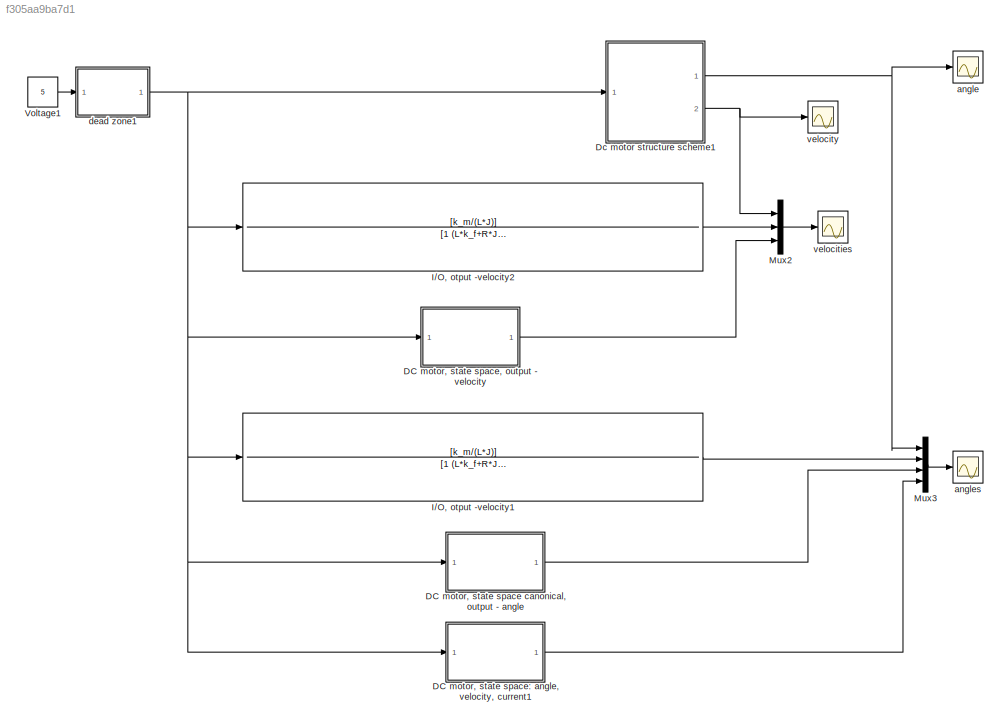
MODEL slx_f305aa9ba7d1
KIND model
CONFIG AbsTol = auto
CONFIG EnableMultiTasking = off
CONFIG FixedStep = 0.001
CONFIG MaxStep = auto
CONFIG MinStep = auto
CONFIG RelTol = 1e-3
CONFIG SampleTimeConstraint = Unconstrained
CONFIG Solver = FixedStepAuto
CONFIG SolverName = FixedStepAuto
CONFIG StartTime = 0.0
CONFIG StopTime = 20
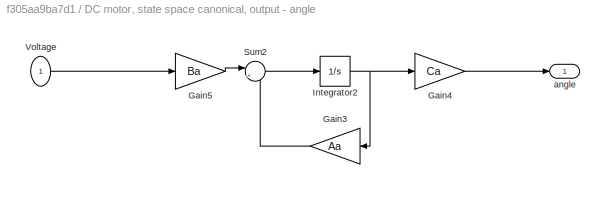
BLOCK [SubSystem] DC motor, state space canonical, output - angle
  Ports = [1, 1]
  RequestExecContextInheritance = off
  Variant = off
BLOCK [Gain] DC motor, state space canonical, output - angle/Gain3
  Gain = Aa
  Multiplication = Matrix(K*u) (u vector)
  OutDataTypeStr = Inherit: Inherit via internal rule
  ParamDataTypeStr = Inherit: Inherit via internal rule
  SaturateOnIntegerOverflow = off
BLOCK [Gain] DC motor, state space canonical, output - angle/Gain4
  Gain = Ca
  Multiplication = Matrix(K*u) (u vector)
  OutDataTypeStr = Inherit: Inherit via internal rule
  ParamDataTypeStr = Inherit: Inherit via internal rule
  SaturateOnIntegerOverflow = off
BLOCK [Gain] DC motor, state space canonical, output - angle/Gain5
  Gain = Ba
  Multiplication = Matrix(K*u) (u vector)
  OutDataTypeStr = Inherit: Inherit via internal rule
  ParamDataTypeStr = Inherit: Inherit via internal rule
  SaturateOnIntegerOverflow = off
BLOCK [Integrator] DC motor, state space canonical, output - angle/Integrator2
  Ports = [1, 1]
BLOCK [Sum] DC motor, state space canonical, output - angle/Sum2
  IconShape = round
  InputSameDT = off
  Inputs = |++
  OutDataTypeStr = Inherit: Inherit via internal rule
  Ports = [2, 1]
  SaturateOnIntegerOverflow = off
BLOCK [Inport] DC motor, state space canonical, output - angle/Voltage
  IconDisplay = Port number
BLOCK [Outport] DC motor, state space canonical, output - angle/angle
  IconDisplay = Port number
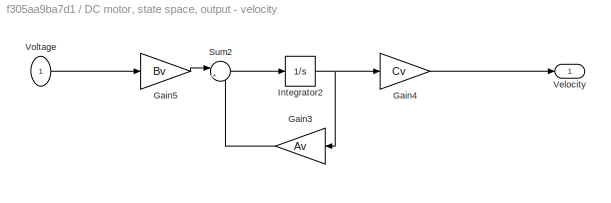
BLOCK [SubSystem] DC motor, state space, output - velocity
  Ports = [1, 1]
  RequestExecContextInheritance = off
  Variant = off
BLOCK [Gain] DC motor, state space, output - velocity/Gain3
  Gain = Av
  Multiplication = Matrix(K*u) (u vector)
  OutDataTypeStr = Inherit: Inherit via internal rule
  ParamDataTypeStr = Inherit: Inherit via internal rule
  SaturateOnIntegerOverflow = off
BLOCK [Gain] DC motor, state space, output - velocity/Gain4
  Gain = Cv
  Multiplication = Matrix(K*u) (u vector)
  OutDataTypeStr = Inherit: Inherit via internal rule
  ParamDataTypeStr = Inherit: Inherit via internal rule
  SaturateOnIntegerOverflow = off
BLOCK [Gain] DC motor, state space, output - velocity/Gain5
  Gain = Bv
  Multiplication = Matrix(K*u) (u vector)
  OutDataTypeStr = Inherit: Inherit via internal rule
  ParamDataTypeStr = Inherit: Inherit via internal rule
  SaturateOnIntegerOverflow = off
BLOCK [Integrator] DC motor, state space, output - velocity/Integrator2
  Ports = [1, 1]
BLOCK [Sum] DC motor, state space, output - velocity/Sum2
  IconShape = round
  InputSameDT = off
  Inputs = |++
  OutDataTypeStr = Inherit: Inherit via internal rule
  Ports = [2, 1]
  SaturateOnIntegerOverflow = off
BLOCK [Outport] DC motor, state space, output - velocity/Velocity
  IconDisplay = Port number
BLOCK [Inport] DC motor, state space, output - velocity/Voltage
  IconDisplay = Port number
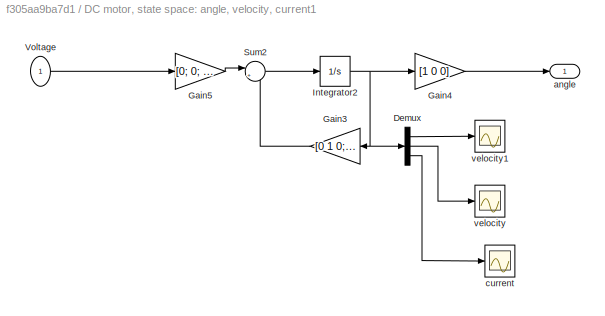
BLOCK [SubSystem] DC motor, state space: angle, velocity, current1
  Ports = [1, 1]
  RequestExecContextInheritance = off
  Variant = off
BLOCK [Demux] DC motor, state space: angle, velocity, current1/Demux
  DisplayOption = bar
  Outputs = 3
  Ports = [1, 3]
BLOCK [Gain] DC motor, state space: angle, velocity, current1/Gain3
  Gain = [0 1 0; 0 -k_f/J k_m/J; 0 -k_e/T -1/T]
  Multiplication = Matrix(K*u) (u vector)
  OutDataTypeStr = Inherit: Inherit via internal rule
  ParamDataTypeStr = Inherit: Inherit via internal rule
  SaturateOnIntegerOverflow = off
BLOCK [Gain] DC motor, state space: angle, velocity, current1/Gain4
  Gain = [1 0 0]
  Multiplication = Matrix(K*u) (u vector)
  OutDataTypeStr = Inherit: Inherit via internal rule
  ParamDataTypeStr = Inherit: Inherit via internal rule
  SaturateOnIntegerOverflow = off
BLOCK [Gain] DC motor, state space: angle, velocity, current1/Gain5
  Gain = [0; 0; K_D/T]
  Multiplication = Matrix(K*u) (u vector)
  OutDataTypeStr = Inherit: Inherit via internal rule
  ParamDataTypeStr = Inherit: Inherit via internal rule
  SaturateOnIntegerOverflow = off
BLOCK [Integrator] DC motor, state space: angle, velocity, current1/Integrator2
  Ports = [1, 1]
BLOCK [Sum] DC motor, state space: angle, velocity, current1/Sum2
  IconShape = round
  InputSameDT = off
  Inputs = |++
  OutDataTypeStr = Inherit: Inherit via internal rule
  Ports = [2, 1]
  SaturateOnIntegerOverflow = off
BLOCK [Inport] DC motor, state space: angle, velocity, current1/Voltage
  IconDisplay = Port number
BLOCK [Outport] DC motor, state space: angle, velocity, current1/angle
  IconDisplay = Port number
BLOCK [Scope] DC motor, state space: angle, velocity, current1/current
  NumInputPorts = 1
  Ports = [1]
  ScopeSpecificationString = Simulink.scopes.TimeScopeBlockCfg('CurrentConfiguration', extmgr.ConfigurationSet(extmgr.Configuration('Core','General UI',true),extmgr.Configuration('Core','Source UI',true),extmgr.Configuration('Sources','WiredSimulink',true,'DataLoggingVariableName','ScopeData3'),extmgr.Configuration('Visuals','Time Domain',true,'SerializedDisplays',{struct('MinYLimReal','-123.5','MaxYLimReal','1111.5','YLabelR...<+1380ch>
BLOCK [Scope] DC motor, state space: angle, velocity, current1/velocity
  NumInputPorts = 1
  Ports = [1]
  ScopeSpecificationString = Simulink.scopes.TimeScopeBlockCfg('CurrentConfiguration', extmgr.ConfigurationSet(extmgr.Configuration('Core','General UI',true),extmgr.Configuration('Core','Source UI',true),extmgr.Configuration('Sources','WiredSimulink',true,'DataLoggingVariableName','ScopeData1'),extmgr.Configuration('Visuals','Time Domain',true,'SerializedDisplays',{struct('MinYLimReal','-1.2501','MaxYLimReal','11.25091','YLab...<+1368ch>
BLOCK [Scope] DC motor, state space: angle, velocity, current1/velocity1
  NumInputPorts = 1
  Ports = [1]
  ScopeSpecificationString = Simulink.scopes.TimeScopeBlockCfg('CurrentConfiguration', extmgr.ConfigurationSet(extmgr.Configuration('Core','General UI',true),extmgr.Configuration('Core','Source UI',true),extmgr.Configuration('Sources','WiredSimulink',true,'DataLoggingVariableName','ScopeData2'),extmgr.Configuration('Visuals','Time Domain',true,'SerializedDisplays',{struct('MinYLimReal','-123.5','MaxYLimReal','1111.5','YLabelR...<+1380ch>
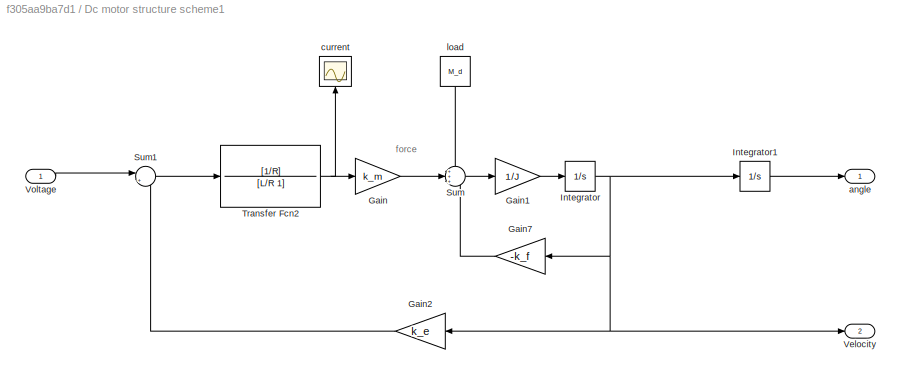
BLOCK [SubSystem] Dc motor structure scheme1
  Ports = [1, 2]
  RequestExecContextInheritance = off
  Variant = off
BLOCK [Gain] Dc motor structure scheme1/Gain
  Gain = k_m
  OutDataTypeStr = Inherit: Inherit via internal rule
  ParamDataTypeStr = Inherit: Inherit via internal rule
  SaturateOnIntegerOverflow = off
BLOCK [Gain] Dc motor structure scheme1/Gain1
  Gain = 1/J
  OutDataTypeStr = Inherit: Inherit via internal rule
  ParamDataTypeStr = Inherit: Inherit via internal rule
  SaturateOnIntegerOverflow = off
BLOCK [Gain] Dc motor structure scheme1/Gain2
  Gain = k_e
  OutDataTypeStr = Inherit: Inherit via internal rule
  ParamDataTypeStr = Inherit: Inherit via internal rule
  SaturateOnIntegerOverflow = off
BLOCK [Gain] Dc motor structure scheme1/Gain7
  Gain = -k_f
  OutDataTypeStr = Inherit: Inherit via internal rule
  ParamDataTypeStr = Inherit: Inherit via internal rule
  SaturateOnIntegerOverflow = off
BLOCK [Integrator] Dc motor structure scheme1/Integrator
  Ports = [1, 1]
BLOCK [Integrator] Dc motor structure scheme1/Integrator1
  Ports = [1, 1]
BLOCK [Sum] Dc motor structure scheme1/Sum
  IconShape = round
  InputSameDT = off
  Inputs = +++
  OutDataTypeStr = Inherit: Inherit via internal rule
  Ports = [3, 1]
  SaturateOnIntegerOverflow = off
BLOCK [Sum] Dc motor structure scheme1/Sum1
  IconShape = round
  InputSameDT = off
  Inputs = |+-
  OutDataTypeStr = Inherit: Inherit via internal rule
  Ports = [2, 1]
  SaturateOnIntegerOverflow = off
BLOCK [TransferFcn] Dc motor structure scheme1/Transfer Fcn2
  Denominator = [L/R 1]
  Numerator = [1/R]
BLOCK [Outport] Dc motor structure scheme1/Velocity
  IconDisplay = Port number
  Port = 2
BLOCK [Inport] Dc motor structure scheme1/Voltage
  IconDisplay = Port number
BLOCK [Outport] Dc motor structure scheme1/angle
  IconDisplay = Port number
BLOCK [Scope] Dc motor structure scheme1/current
  NumInputPorts = 1
  Ports = [1]
  ScopeSpecificationString = Simulink.scopes.TimeScopeBlockCfg('CurrentConfiguration', extmgr.ConfigurationSet(extmgr.Configuration('Core','General UI',true),extmgr.Configuration('Core','Source UI',true),extmgr.Configuration('Sources','WiredSimulink',true,'DataLoggingVariableName','ScopeData2'),extmgr.Configuration('Visuals','Time Domain',true,'SerializedDisplays',{struct('MinYLimReal','-0.50015','MaxYLimReal','4.50135','YLab...<+1372ch>
BLOCK [Constant] Dc motor structure scheme1/load
  Value = M_d
BLOCK [TransferFcn] I//O, otput -velocity1
  Denominator = [1 (L*k_f+R*J)/(L*J) (R*k_f+k_m*k_e)/(L*J) 0]
  Numerator = [k_m/(L*J)]
BLOCK [TransferFcn] I//O, otput -velocity2
  Denominator = [1 (L*k_f+R*J)/(L*J) (R*k_f+k_m*k_e)/(L*J)]
  Numerator = [k_m/(L*J)]
BLOCK [Mux] Mux2
  DisplayOption = bar
  Inputs = 3
  Ports = [3, 1]
BLOCK [Mux] Mux3
  DisplayOption = bar
  Ports = [4, 1]
BLOCK [Constant] Voltage1
  Value = 5
BLOCK [Scope] angle
  NumInputPorts = 1
  Ports = [1]
  ScopeSpecificationString = Simulink.scopes.TimeScopeBlockCfg('CurrentConfiguration', extmgr.ConfigurationSet(extmgr.Configuration('Core','General UI',true),extmgr.Configuration('Core','Source UI',true),extmgr.Configuration('Sources','WiredSimulink',true,'DataLoggingVariableName','ScopeData1'),extmgr.Configuration('Visuals','Time Domain',true,'SerializedDisplays',{struct('MinYLimReal','-23.5','MaxYLimReal','211.5','YLabelRea...<+1373ch>
BLOCK [Scope] angles
  NumInputPorts = 1
  Ports = [1]
  ScopeSpecificationString = Simulink.scopes.TimeScopeBlockCfg('CurrentConfiguration', extmgr.ConfigurationSet(extmgr.Configuration('Core','General UI',true),extmgr.Configuration('Core','Source UI',true),extmgr.Configuration('Sources','WiredSimulink',true,'DataLoggingVariableName','ScopeData4'),extmgr.Configuration('Visuals','Time Domain',true,'SerializedDisplays',{struct('MinYLimReal','-23.5','MaxYLimReal','211.5','YLabelRea...<+1524ch>
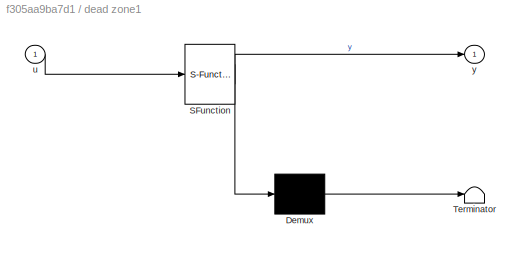
BLOCK [SubSystem] dead zone1
  ErrorFcn = Stateflow.Translate.translate
  PermitHierarchicalResolution = ExplicitOnly
  Ports = [1, 1]
  RequestExecContextInheritance = off
  SFBlockType = MATLAB Function
  TreatAsAtomicUnit = on
  Variant = off
BLOCK [Demux] dead zone1/ Demux 
  Outputs = 1
  Ports = [1, 1]
BLOCK [S-Function] dead zone1/ SFunction 
  EnableBusSupport = on
  FunctionName = sf_sfun
  PortCounts = [1 2]
  Ports = [1, 2]
  SFcnIsStateOwnerBlock = off
  SFunctionDeploymentMode = off
  Tag = Stateflow S-Function dc_motor_models 1
BLOCK [Terminator] dead zone1/ Terminator 
BLOCK [Inport] dead zone1/u
  IconDisplay = Port number
BLOCK [Outport] dead zone1/y
  IconDisplay = Port number
BLOCK [Scope] velocities
  NumInputPorts = 1
  Ports = [1]
  ScopeSpecificationString = Simulink.scopes.TimeScopeBlockCfg('CurrentConfiguration', extmgr.ConfigurationSet(extmgr.Configuration('Core','General UI',true),extmgr.Configuration('Core','Source UI',true),extmgr.Configuration('Sources','WiredSimulink',true,'DataLoggingVariableName','ScopeData3'),extmgr.Configuration('Visuals','Time Domain',true,'SerializedDisplays',{struct('MinYLimReal','-1.2501','MaxYLimReal','11.25091','YLab...<+1482ch>
BLOCK [Scope] velocity
  NumInputPorts = 1
  Ports = [1]
  ScopeSpecificationString = Simulink.scopes.TimeScopeBlockCfg('CurrentConfiguration', extmgr.ConfigurationSet(extmgr.Configuration('Core','General UI',true),extmgr.Configuration('Core','Source UI',true),extmgr.Configuration('Sources','WiredSimulink',true,'DataLoggingVariableName','ScopeData2'),extmgr.Configuration('Visuals','Time Domain',true,'SerializedDisplays',{struct('MinYLimReal','-1.2501','MaxYLimReal','11.25091','YLab...<+1389ch>
ANNOTATION Dc motor structure scheme1: force
LINE DC motor, state space canonical, output - angle/Gain3:1 -> DC motor, state space canonical, output - angle/Sum2:2
LINE DC motor, state space canonical, output - angle/Gain4:1 -> DC motor, state space canonical, output - angle/angle:1
LINE DC motor, state space canonical, output - angle/Gain5:1 -> DC motor, state space canonical, output - angle/Sum2:1
NET DC motor, state space canonical, output - angle/Integrator2:1 -> DC motor, state space canonical, output - angle/Gain3:1, DC motor, state space canonical, output - angle/Gain4:1
LINE DC motor, state space canonical, output - angle/Sum2:1 -> DC motor, state space canonical, output - angle/Integrator2:1
LINE DC motor, state space canonical, output - angle/Voltage:1 -> DC motor, state space canonical, output - angle/Gain5:1
LINE DC motor, state space canonical, output - angle:1 -> Mux3:3
LINE DC motor, state space, output - velocity/Gain3:1 -> DC motor, state space, output - velocity/Sum2:2
LINE DC motor, state space, output - velocity/Gain4:1 -> DC motor, state space, output - velocity/Velocity:1
LINE DC motor, state space, output - velocity/Gain5:1 -> DC motor, state space, output - velocity/Sum2:1
NET DC motor, state space, output - velocity/Integrator2:1 -> DC motor, state space, output - velocity/Gain3:1, DC motor, state space, output - velocity/Gain4:1
LINE DC motor, state space, output - velocity/Sum2:1 -> DC motor, state space, output - velocity/Integrator2:1
LINE DC motor, state space, output - velocity/Voltage:1 -> DC motor, state space, output - velocity/Gain5:1
LINE DC motor, state space, output - velocity:1 -> Mux2:3
LINE DC motor, state space: angle, velocity, current1/Demux:1 -> DC motor, state space: angle, velocity, current1/velocity1:1
LINE DC motor, state space: angle, velocity, current1/Demux:2 -> DC motor, state space: angle, velocity, current1/velocity:1
LINE DC motor, state space: angle, velocity, current1/Demux:3 -> DC motor, state space: angle, velocity, current1/current:1
LINE DC motor, state space: angle, velocity, current1/Gain3:1 -> DC motor, state space: angle, velocity, current1/Sum2:2
LINE DC motor, state space: angle, velocity, current1/Gain4:1 -> DC motor, state space: angle, velocity, current1/angle:1
LINE DC motor, state space: angle, velocity, current1/Gain5:1 -> DC motor, state space: angle, velocity, current1/Sum2:1
NET DC motor, state space: angle, velocity, current1/Integrator2:1 -> DC motor, state space: angle, velocity, current1/Demux:1, DC motor, state space: angle, velocity, current1/Gain3:1, DC motor, state space: angle, velocity, current1/Gain4:1
LINE DC motor, state space: angle, velocity, current1/Sum2:1 -> DC motor, state space: angle, velocity, current1/Integrator2:1
LINE DC motor, state space: angle, velocity, current1/Voltage:1 -> DC motor, state space: angle, velocity, current1/Gain5:1
LINE DC motor, state space: angle, velocity, current1:1 -> Mux3:4
LINE Dc motor structure scheme1/Gain1:1 -> Dc motor structure scheme1/Integrator:1
LINE Dc motor structure scheme1/Gain2:1 -> Dc motor structure scheme1/Sum1:2
LINE Dc motor structure scheme1/Gain7:1 -> Dc motor structure scheme1/Sum:3
LINE Dc motor structure scheme1/Gain:1 -> Dc motor structure scheme1/Sum:2
LINE Dc motor structure scheme1/Integrator1:1 -> Dc motor structure scheme1/angle:1
NET Dc motor structure scheme1/Integrator:1 -> Dc motor structure scheme1/Gain2:1, Dc motor structure scheme1/Gain7:1, Dc motor structure scheme1/Integrator1:1, Dc motor structure scheme1/Velocity:1
LINE Dc motor structure scheme1/Sum1:1 -> Dc motor structure scheme1/Transfer Fcn2:1
LINE Dc motor structure scheme1/Sum:1 -> Dc motor structure scheme1/Gain1:1
NET Dc motor structure scheme1/Transfer Fcn2:1 -> Dc motor structure scheme1/Gain:1, Dc motor structure scheme1/current:1
LINE Dc motor structure scheme1/Voltage:1 -> Dc motor structure scheme1/Sum1:1
LINE Dc motor structure scheme1/load:1 -> Dc motor structure scheme1/Sum:1
NET Dc motor structure scheme1:1 -> Mux3:1, angle:1
NET Dc motor structure scheme1:2 -> Mux2:1, velocity:1
LINE I//O, otput -velocity1:1 -> Mux3:2
LINE I//O, otput -velocity2:1 -> Mux2:2
LINE Mux2:1 -> velocities:1
LINE Mux3:1 -> angles:1
LINE Voltage1:1 -> dead zone1:1
NET dead zone1:1 -> DC motor, state space canonical, output - angle:1, DC motor, state space, output - velocity:1, DC motor, state space: angle, velocity, current1:1, Dc motor structure scheme1:1, I//O, otput -velocity1:1, I//O, otput -velocity2:1
note: NET lines group one-source signal fan-out (src -> all destinations, sorted); 1:1 wires keep LINE
CHART dead zone1 states=1 transitions=1
  STATE_LABEL 'eML_blk_kernel()'
  STATE_LABEL 'SCRIPT:\nfunction y = fcn(u)\nif abs(u)<3\n    y=0;\nelse\n    if abs(u)>5\n        y=sign(u)*5;\n    else\n        y=u;\n    end\nend\n'
